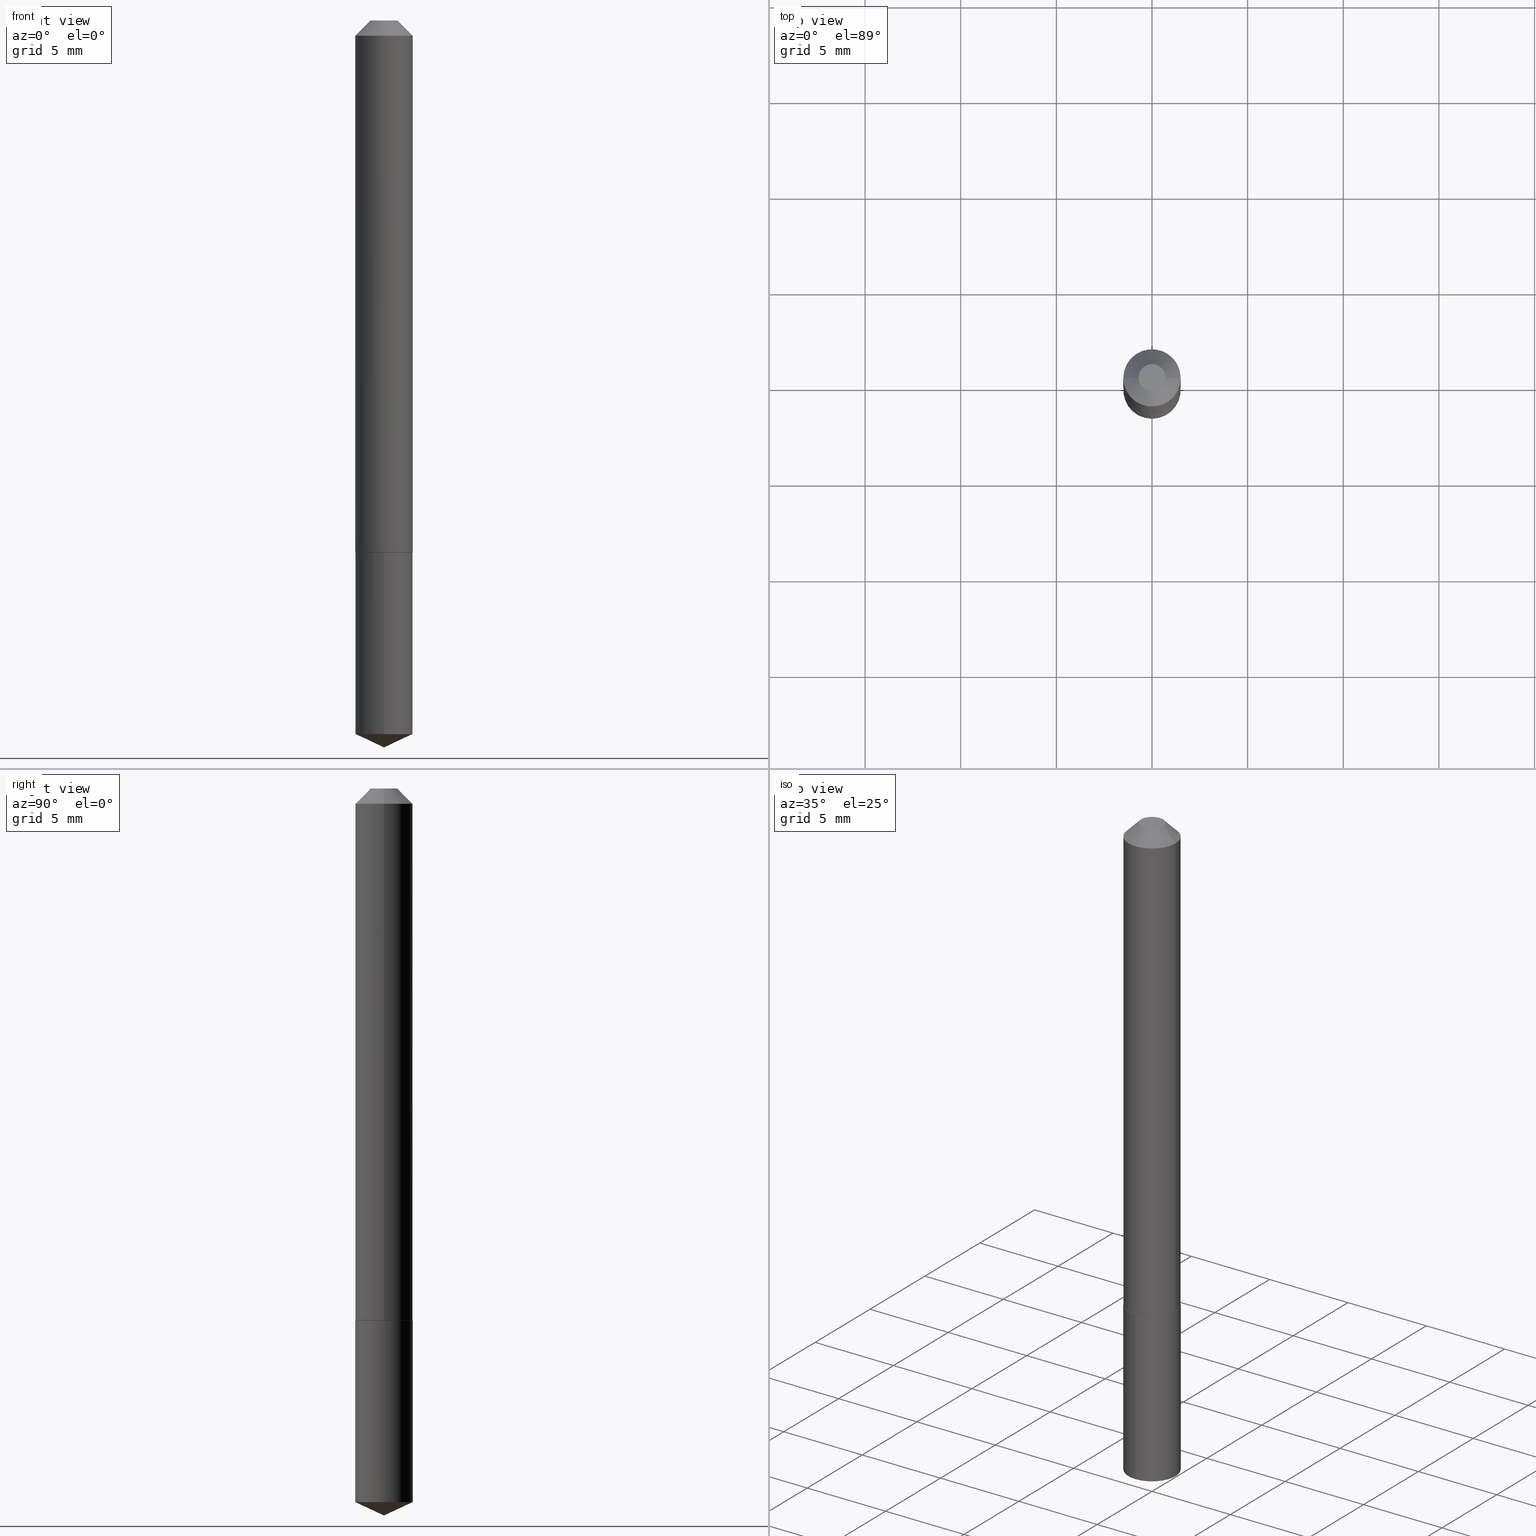
[diagram: canonical four-view strip — front | top / right | iso, engineering-drawing reading convention]
A machine part, canonical four-view strip (front | top / right | iso — engineering-drawing reading convention). The complete STEP part file that produces these views, byte-faithful:
ISO-10303-21;
HEADER;
FILE_DESCRIPTION (( 'STEP AP203' ),
    '1' );
FILE_NAME ('7720.STEP',
    '2024-04-23T14:59:42',
    ( '' ),
    ( '' ),
    'SwSTEP 2.0',
    'SolidWorks 2023',
    '' );
FILE_SCHEMA (( 'CONFIG_CONTROL_DESIGN' ));
ENDSEC;

DATA;
#1 = FACE_OUTER_BOUND ( 'NONE', #214, .T. ) ;
#2 = ORIENTED_EDGE ( 'NONE', *, *, #130, .F. ) ;
#3 = MANIFOLD_SOLID_BREP ( 'Body-Move/Copy2[2]', #46 ) ;
#4 = FACE_OUTER_BOUND ( 'NONE', #236, .T. ) ;
#5 = CIRCLE ( 'NONE', #198, 0.05855000000000011584 ) ;
#6 = CARTESIAN_POINT ( 'NONE',  ( -0.05905000000000013710, -3.400105099228060593E-15, -1.093999999999999861 ) ) ;
#7 = DIRECTION ( 'NONE',  ( -0.7071067811865452413, 2.468850131082233000E-15, -0.7071067811865497932 ) ) ;
#8 = EDGE_CURVE ( 'NONE', #309, #282, #293, .T. ) ;
#9 = DIRECTION ( 'NONE',  ( 1.000000000000000000, -6.982962677686264344E-15, 0.000000000000000000 ) ) ;
#10 = CARTESIAN_POINT ( 'NONE',  ( -0.05905000000000013710, -3.400105099228060593E-15, -1.093999999999999861 ) ) ;
#11 = EDGE_CURVE ( 'NONE', #165, #111, #387, .T. ) ;
#12 = CARTESIAN_POINT ( 'NONE',  ( 0.000000000000000000, 0.000000000000000000, 0.000000000000000000 ) ) ;
#13 = DIRECTION ( 'NONE',  ( 2.445468806185136597E-29, -3.491481338843145583E-15, -1.000000000000000000 ) ) ;
#14 = PERSON_AND_ORGANIZATION ( #162, #129 ) ;
#15 = EDGE_CURVE ( 'NONE', #282, #309, #233, .T. ) ;
#16 = CONICAL_SURFACE ( 'NONE', #343, 0.05905000000000000526, 0.7853981633974450594 ) ;
#17 = CARTESIAN_POINT ( 'NONE',  ( 5.166091316693591663E-48, -7.375809244172283946E-34, -2.112515728529185479E-19 ) ) ;
#18 = APPROVAL_DATE_TIME ( #40, #323 ) ;
#19 = CARTESIAN_POINT ( 'NONE',  ( 3.591186047163604119E-29, -5.127670026563741569E-15, -1.468564532785947563 ) ) ;
#20 = EDGE_LOOP ( 'NONE', ( #43, #252, #374, #2 ) ) ;
#21 = CARTESIAN_POINT ( 'NONE',  ( 0.05905000000000013710, -4.232024530811775401E-15, -1.093999999999999861 ) ) ;
#22 = CARTESIAN_POINT ( 'NONE',  ( 4.195754854663658212E-16, 0.05904999999999617499, -1.094500000000000250 ) ) ;
#23 = ORIENTED_EDGE ( 'NONE', *, *, #89, .F. ) ;
#24 = CALENDAR_DATE ( 2024, 23, 4 ) ;
#25 = DIRECTION ( 'NONE',  ( 2.445087300798306886E-29, -3.492027676271023430E-15, -1.000000000000000000 ) ) ;
#26 = CONICAL_SURFACE ( 'NONE', #276, 84.42940631927480410, 1.134464013796318005 ) ;
#27 = ORIENTED_EDGE ( 'NONE', *, *, #157, .T. ) ;
#28 = LINE ( 'NONE', #289, #211 ) ;
#29 = ORIENTED_EDGE ( 'NONE', *, *, #348, .T. ) ;
#30 = PERSON_AND_ORGANIZATION_ROLE ( 'classification_officer' ) ;
#31 = FACE_OUTER_BOUND ( 'NONE', #249, .T. ) ;
#32 = ORIENTED_EDGE ( 'NONE', *, *, #8, .T. ) ;
#33 = CARTESIAN_POINT ( 'NONE',  ( -9.260476689061824272E-28, 1.322575799374450875E-13, 37.87397874015748300 ) ) ;
#34 = APPROVAL_PERSON_ORGANIZATION ( #117, #385, #270 ) ;
#35 = EDGE_CURVE ( 'NONE', #232, #384, #136, .T. ) ;
#36 = DIRECTION ( 'NONE',  ( -2.445087300798307446E-29, 3.492027676271023430E-15, 1.000000000000000000 ) ) ;
#37 = FACE_OUTER_BOUND ( 'NONE', #229, .T. ) ;
#38 = DIRECTION ( 'NONE',  ( -0.7071067811864388819, 7.493145998869961307E-15, 0.7071067811866561525 ) ) ;
#39 = APPROVAL ( #346, 'UNSPECIFIED' ) ;
#40 = DATE_AND_TIME ( #308, #212 ) ;
#41 = COORDINATED_UNIVERSAL_TIME_OFFSET ( 5, 0, .BEHIND. ) ;
#42 = APPROVAL_PERSON_ORGANIZATION ( #250, #323, #71 ) ;
#43 = ORIENTED_EDGE ( 'NONE', *, *, #54, .T. ) ;
#44 = LINE ( 'NONE', #110, #94 ) ;
#45 = ADVANCED_FACE ( 'NONE', ( #170 ), #386, .F. ) ;
#46 = CLOSED_SHELL ( 'NONE', ( #382, #79, #277, #45, #256, #390, #216, #63 ) ) ;
#47 = DIRECTION ( 'NONE',  ( -2.445468806185136597E-29, 3.491481338843145583E-15, 1.000000000000000000 ) ) ;
#48 = VERTEX_POINT ( 'NONE', #354 ) ;
#49 = APPROVAL_DATE_TIME ( #139, #39 ) ;
#50 = LINE ( 'NONE', #320, #145 ) ;
#51 = VERTEX_POINT ( 'NONE', #286 ) ;
#52 = PERSON_AND_ORGANIZATION ( #162, #129 ) ;
#53 = DIRECTION ( 'NONE',  ( 1.000000000000000000, -6.982962677686265922E-15, 0.000000000000000000 ) ) ;
#54 = EDGE_CURVE ( 'NONE', #384, #232, #102, .T. ) ;
#55 = DIRECTION ( 'NONE',  ( 1.000000000000000000, -6.982962677686264344E-15, 0.000000000000000000 ) ) ;
#56 = AXIS2_PLACEMENT_3D ( 'NONE', #297, #220, #62 ) ;
#57 = CC_DESIGN_SECURITY_CLASSIFICATION ( #377, ( #264 ) ) ;
#58 = CC_DESIGN_PERSON_AND_ORGANIZATION_ASSIGNMENT ( #52, #296, ( #264 ) ) ;
#59 = DIRECTION ( 'NONE',  ( 2.445468806185136597E-29, -3.491481338843145583E-15, -1.000000000000000000 ) ) ;
#60 = ORIENTED_EDGE ( 'NONE', *, *, #35, .T. ) ;
#61 = SECURITY_CLASSIFICATION_LEVEL ( 'unclassified' ) ;
#62 = DIRECTION ( 'NONE',  ( 1.000000000000000000, -6.982962677686265922E-15, 0.000000000000000000 ) ) ;
#63 = ADVANCED_FACE ( 'NONE', ( #258 ), #178, .F. ) ;
#64 = CC_DESIGN_PERSON_AND_ORGANIZATION_ASSIGNMENT ( #241, #30, ( #377 ) ) ;
#65 = DIRECTION ( 'NONE',  ( 6.439704144417036664E-15, 0.9063077870366530453, 0.4226182617406928910 ) ) ;
#66 = VECTOR ( 'NONE', #357, 39.37007874015748143 ) ;
#67 = CYLINDRICAL_SURFACE ( 'NONE', #226, 0.05904999999999999832 ) ;
#68 = DIRECTION ( 'NONE',  ( -2.445468806185136597E-29, 3.491481338843145583E-15, 1.000000000000000000 ) ) ;
#69 = EDGE_CURVE ( 'NONE', #210, #207, #363, .T. ) ;
#70 = DIRECTION ( 'NONE',  ( -2.445468806185136597E-29, 3.491481338843145583E-15, 1.000000000000000000 ) ) ;
#71 = APPROVAL_ROLE ( '' ) ;
#72 = LENGTH_MEASURE_WITH_UNIT ( LENGTH_MEASURE( 0.02539999999999999897 ), #192 );
#73 = ADVANCED_BREP_SHAPE_REPRESENTATION ( '7720', ( #255, #3, #254 ), #160 ) ;
#74 = EDGE_LOOP ( 'NONE', ( #347, #362 ) ) ;
#75 = EDGE_CURVE ( 'NONE', #51, #85, #193, .T. ) ;
#76 = PRODUCT_DEFINITION_SHAPE ( 'NONE', 'NONE',  #200 ) ;
#77 =( NAMED_UNIT ( * ) SI_UNIT ( $, .STERADIAN. ) SOLID_ANGLE_UNIT ( ) );
#78 = AXIS2_PLACEMENT_3D ( 'NONE', #84, #383, #235 ) ;
#79 = ADVANCED_FACE ( 'NONE', ( #204 ), #93, .T. ) ;
#80 = DIRECTION ( 'NONE',  ( -2.445468806185136597E-29, 3.491481338843145583E-15, 1.000000000000000000 ) ) ;
#81 = EDGE_LOOP ( 'NONE', ( #107, #324, #358, #380 ) ) ;
#82 = DIRECTION ( 'NONE',  ( 1.000000000000000000, -6.982962677686266711E-15, 4.876176775795936353E-29 ) ) ;
#83 = VECTOR ( 'NONE', #338, 39.37007874015748143 ) ;
#84 = CARTESIAN_POINT ( 'NONE',  ( 2.675342873966538993E-29, -3.819680584694400481E-15, -1.093999999999999861 ) ) ;
#85 = VERTEX_POINT ( 'NONE', #140 ) ;
#86 = EDGE_CURVE ( 'NONE', #48, #85, #50, .T. ) ;
#87 = CARTESIAN_POINT ( 'NONE',  ( 2.676565608369631794E-29, -3.821426325363822773E-15, -1.094499999999999806 ) ) ;
#88 = ORIENTED_EDGE ( 'NONE', *, *, #299, .F. ) ;
#89 = EDGE_CURVE ( 'NONE', #207, #165, #28, .T. ) ;
#90 = CARTESIAN_POINT ( 'NONE',  ( 2.675342873966538993E-29, -3.819680584694400481E-15, -1.093999999999999861 ) ) ;
#91 = CC_DESIGN_PERSON_AND_ORGANIZATION_ASSIGNMENT ( #225, #325, ( #264 ) ) ;
#92 = ORIENTED_EDGE ( 'NONE', *, *, #54, .F. ) ;
#93 = CYLINDRICAL_SURFACE ( 'NONE', #284, 0.05905000000000006771 ) ;
#94 = VECTOR ( 'NONE', #275, 39.37007874015748143 ) ;
#95 = EDGE_CURVE ( 'NONE', #51, #309, #237, .T. ) ;
#96 = CONICAL_SURFACE ( 'NONE', #369, 84.42940631927480410, 1.134464013796318005 ) ;
#97 = ORIENTED_EDGE ( 'NONE', *, *, #251, .F. ) ;
#98 = LINE ( 'NONE', #215, #301 ) ;
#99 = SHAPE_DEFINITION_REPRESENTATION ( #76, #73 ) ;
#100 = FACE_OUTER_BOUND ( 'NONE', #287, .T. ) ;
#101 = DIRECTION ( 'NONE',  ( -6.982962677686265922E-15, -1.000000000000000000, 4.626330217890369336E-15 ) ) ;
#102 = CIRCLE ( 'NONE', #78, 0.05905000000000013710 ) ;
#103 = DIRECTION ( 'NONE',  ( -2.445468806185136597E-29, 3.491481338843145583E-15, 1.000000000000000000 ) ) ;
#104 = CARTESIAN_POINT ( 'NONE',  ( 7.642090019328603538E-31, -1.091087918388490390E-16, -0.03125000000000021511 ) ) ;
#105 = DATE_AND_TIME ( #372, #356 ) ;
#106 = EDGE_LOOP ( 'NONE', ( #141, #314, #350 ) ) ;
#107 = ORIENTED_EDGE ( 'NONE', *, *, #95, .F. ) ;
#108 = CALENDAR_DATE ( 2024, 23, 4 ) ;
#109 = AXIS2_PLACEMENT_3D ( 'NONE', #90, #201, #55 ) ;
#110 = CARTESIAN_POINT ( 'NONE',  ( -4.123439461173472114E-16, -0.05905000000000382165, -1.094499999999999584 ) ) ;
#111 = VERTEX_POINT ( 'NONE', #257 ) ;
#112 = ORIENTED_EDGE ( 'NONE', *, *, #251, .T. ) ;
#113 = AXIS2_PLACEMENT_3D ( 'NONE', #315, #326, #166 ) ;
#114 = CIRCLE ( 'NONE', #302, 0.05855000000000011584 ) ;
#115 = DIRECTION ( 'NONE',  ( -2.445087300798307446E-29, 3.492027676271023430E-15, 1.000000000000000000 ) ) ;
#116 = DIRECTION ( 'NONE',  ( -2.445468806185136877E-29, 3.491481338843145188E-15, 1.000000000000000000 ) ) ;
#117 = PERSON_AND_ORGANIZATION ( #162, #129 ) ;
#118 = DIRECTION ( 'NONE',  ( -2.438088387897960049E-29, 3.491481338843145188E-15, 1.000000000000000000 ) ) ;
#119 = DESIGN_CONTEXT ( 'detailed design', #274, 'design' ) ;
#120 = ORIENTED_EDGE ( 'NONE', *, *, #227, .F. ) ;
#121 = ADVANCED_FACE ( 'NONE', ( #1 ), #143, .F. ) ;
#122 = CARTESIAN_POINT ( 'NONE',  ( 2.676565608369631794E-29, -3.821426325363822773E-15, -1.094499999999999806 ) ) ;
#123 = AXIS2_PLACEMENT_3D ( 'NONE', #206, #115, #283 ) ;
#124 = LINE ( 'NONE', #6, #163 ) ;
#125 = UNCERTAINTY_MEASURE_WITH_UNIT (LENGTH_MEASURE( 1.000000000000000082E-05 ), #132, 'distance_accuracy_value', 'NONE');
#126 = CARTESIAN_POINT ( 'NONE',  ( 1.033218263338718333E-47, -1.475161848834456789E-33, -4.225031457058370958E-19 ) ) ;
#127 = CARTESIAN_POINT ( 'NONE',  ( -4.123439461173472114E-16, -0.05905000000000382165, -1.094499999999999584 ) ) ;
#128 = CONICAL_SURFACE ( 'NONE', #177, 0.05905000000000013710, 0.7853981633972946241 ) ;
#129 = ORGANIZATION ( 'UNSPECIFIED', 'UNSPECIFIED', '' ) ;
#130 = EDGE_CURVE ( 'NONE', #384, #165, #379, .T. ) ;
#131 = CARTESIAN_POINT ( 'NONE',  ( 0.05905000000000000526, -5.214527379562231333E-16, -0.03125000000000021511 ) ) ;
#132 =( CONVERSION_BASED_UNIT ( 'INCH', #72 ) LENGTH_UNIT ( ) NAMED_UNIT ( #191 ) );
#133 = CC_DESIGN_DATE_AND_TIME_ASSIGNMENT ( #105, #222, ( #200 ) ) ;
#134 = PERSON_AND_ORGANIZATION ( #162, #129 ) ;
#135 = ADVANCED_FACE ( 'NONE', ( #148 ), #96, .T. ) ;
#136 = CIRCLE ( 'NONE', #109, 0.05905000000000013710 ) ;
#137 = AXIS2_PLACEMENT_3D ( 'NONE', #12, #70, #82 ) ;
#138 = DIRECTION ( 'NONE',  ( -1.000000000000000000, 6.982962677686265922E-15, -4.876176775795935793E-29 ) ) ;
#139 = DATE_AND_TIME ( #108, #199 ) ;
#140 = CARTESIAN_POINT ( 'NONE',  ( -4.123439461173381888E-16, -0.05905000000000514698, -1.468564532785947341 ) ) ;
#141 = ORIENTED_EDGE ( 'NONE', *, *, #86, .F. ) ;
#142 = COORDINATED_UNIVERSAL_TIME_OFFSET ( 5, 0, .BEHIND. ) ;
#143 = PLANE ( 'NONE',  #219 ) ;
#144 = ORIENTED_EDGE ( 'NONE', *, *, #243, .T. ) ;
#145 = VECTOR ( 'NONE', #173, 39.37007874015748854 ) ;
#146 = CC_DESIGN_APPROVAL ( #323, ( #264 ) ) ;
#147 = DIRECTION ( 'NONE',  ( 0.7071067811865452413, -7.319954787623248157E-15, -0.7071067811865497932 ) ) ;
#148 = FACE_OUTER_BOUND ( 'NONE', #327, .T. ) ;
#149 = CARTESIAN_POINT ( 'NONE',  ( 3.658937548991450661E-29, -5.223226673839453949E-15, -1.496099999999999985 ) ) ;
#150 = ORIENTED_EDGE ( 'NONE', *, *, #86, .T. ) ;
#151 = DIRECTION ( 'NONE',  ( -2.445087300798307446E-29, 3.492027676271023430E-15, 1.000000000000000000 ) ) ;
#152 = AXIS2_PLACEMENT_3D ( 'NONE', #122, #240, #364 ) ;
#153 = CC_DESIGN_PERSON_AND_ORGANIZATION_ASSIGNMENT ( #14, #247, ( #200 ) ) ;
#154 = DIRECTION ( 'NONE',  ( -6.982962677686265922E-15, -1.000000000000000000, 4.626330217890369336E-15 ) ) ;
#155 = EDGE_CURVE ( 'NONE', #85, #282, #44, .T. ) ;
#156 = CARTESIAN_POINT ( 'NONE',  ( 2.675342873966538993E-29, -3.819680584694400481E-15, -1.093999999999999861 ) ) ;
#157 = EDGE_CURVE ( 'NONE', #210, #111, #366, .T. ) ;
#158 = CARTESIAN_POINT ( 'NONE',  ( 2.676565608369632355E-29, -3.821426325363822773E-15, -1.094500000000000028 ) ) ;
#159 = AXIS2_PLACEMENT_3D ( 'NONE', #209, #47, #295 ) ;
#160 =( GEOMETRIC_REPRESENTATION_CONTEXT ( 3 ) GLOBAL_UNCERTAINTY_ASSIGNED_CONTEXT ( ( #125 ) ) GLOBAL_UNIT_ASSIGNED_CONTEXT ( ( #132, #342, #77 ) ) REPRESENTATION_CONTEXT ( 'NONE', 'WORKASPACE' ) );
#161 = FACE_OUTER_BOUND ( 'NONE', #262, .T. ) ;
#162 = PERSON ( 'UNSPECIFIED', 'UNSPECIFIED', 'UNSPECIFIED', ('UNSPECIFIED'), ('UNSPECIFIED'), ('UNSPECIFIED') ) ;
#163 = VECTOR ( 'NONE', #38, 39.37007874015748143 ) ;
#164 = LOCAL_TIME ( 10, 59, 42.00000000000000000, #290 ) ;
#165 = VERTEX_POINT ( 'NONE', #131 ) ;
#166 = DIRECTION ( 'NONE',  ( -6.982962677686265922E-15, -1.000000000000000000, 4.626330217890369336E-15 ) ) ;
#167 = ORIENTED_EDGE ( 'NONE', *, *, #95, .T. ) ;
#168 = VECTOR ( 'NONE', #65, 39.37007874015748143 ) ;
#169 = DIRECTION ( 'NONE',  ( 1.000000000000000000, 0.000000000000000000, 0.000000000000000000 ) ) ;
#170 = FACE_OUTER_BOUND ( 'NONE', #313, .T. ) ;
#171 = ORIENTED_EDGE ( 'NONE', *, *, #368, .T. ) ;
#172 = MECHANICAL_CONTEXT ( 'NONE', #331, 'mechanical' ) ;
#173 = DIRECTION ( 'NONE',  ( -6.328713451373380423E-15, -0.9063077870366499367, 0.4226182617406991082 ) ) ;
#174 = CC_DESIGN_DATE_AND_TIME_ASSIGNMENT ( #234, #294, ( #377 ) ) ;
#175 = DIRECTION ( 'NONE',  ( 1.000000000000000000, -6.982962677686265922E-15, 4.876176775795935793E-29 ) ) ;
#176 = CALENDAR_DATE ( 2024, 23, 4 ) ;
#177 = AXIS2_PLACEMENT_3D ( 'NONE', #268, #367, #370 ) ;
#178 = PLANE ( 'NONE',  #376 ) ;
#179 = ORIENTED_EDGE ( 'NONE', *, *, #69, .F. ) ;
#180 = DIRECTION ( 'NONE',  ( 1.000000000000000000, -6.982962677686266711E-15, 0.000000000000000000 ) ) ;
#181 = ORIENTED_EDGE ( 'NONE', *, *, #157, .F. ) ;
#182 = APPROVAL_DATE_TIME ( #184, #385 ) ;
#183 = FACE_OUTER_BOUND ( 'NONE', #106, .T. ) ;
#184 = DATE_AND_TIME ( #24, #164 ) ;
#185 = ADVANCED_FACE ( 'NONE', ( #303 ), #67, .T. ) ;
#186 = CARTESIAN_POINT ( 'NONE',  ( 3.591186047163604119E-29, -5.127670026563741569E-15, -1.468564532785947563 ) ) ;
#187 = AXIS2_PLACEMENT_3D ( 'NONE', #19, #228, #351 ) ;
#188 = PRODUCT ( '7720', '7720', '', ( #172 ) ) ;
#189 = CARTESIAN_POINT ( 'NONE',  ( 2.676565608369632355E-29, -3.821426325363822773E-15, -1.094500000000000028 ) ) ;
#190 = CARTESIAN_POINT ( 'NONE',  ( 4.195754854663749917E-16, 0.05904999999999616805, -1.094500000000000250 ) ) ;
#191 = DIMENSIONAL_EXPONENTS ( 1.000000000000000000, 0.000000000000000000, 0.000000000000000000, 0.000000000000000000, 0.000000000000000000, 0.000000000000000000, 0.000000000000000000 ) ;
#192 =( LENGTH_UNIT ( ) NAMED_UNIT ( * ) SI_UNIT ( $, .METRE. ) );
#193 = CIRCLE ( 'NONE', #187, 0.05904999999999999832 ) ;
#194 = PERSON_AND_ORGANIZATION_ROLE ( 'design_owner' ) ;
#195 = PRODUCT_RELATED_PRODUCT_CATEGORY ( 'detail', '', ( #188 ) ) ;
#196 = ORIENTED_EDGE ( 'NONE', *, *, #291, .F. ) ;
#197 = VERTEX_POINT ( 'NONE', #272 ) ;
#198 = AXIS2_PLACEMENT_3D ( 'NONE', #189, #103, #180 ) ;
#199 = LOCAL_TIME ( 10, 59, 42.00000000000000000, #142 ) ;
#200 = PRODUCT_DEFINITION ( 'UNKNOWN', '', #264, #119 ) ;
#201 = DIRECTION ( 'NONE',  ( -2.445468806185136597E-29, 3.491481338843145583E-15, 1.000000000000000000 ) ) ;
#202 = ORIENTED_EDGE ( 'NONE', *, *, #243, .F. ) ;
#203 = EDGE_CURVE ( 'NONE', #85, #51, #349, .T. ) ;
#204 = FACE_OUTER_BOUND ( 'NONE', #20, .T. ) ;
#205 = ORIENTED_EDGE ( 'NONE', *, *, #75, .F. ) ;
#206 = CARTESIAN_POINT ( 'NONE',  ( 2.676565608369631794E-29, -3.821426325363822773E-15, -1.094499999999999806 ) ) ;
#207 = VERTEX_POINT ( 'NONE', #336 ) ;
#208 = EDGE_CURVE ( 'NONE', #48, #51, #271, .T. ) ;
#209 = CARTESIAN_POINT ( 'NONE',  ( 1.033218263338718333E-47, -1.475161848834456789E-33, -4.225031457058370958E-19 ) ) ;
#210 = VERTEX_POINT ( 'NONE', #333 ) ;
#211 = VECTOR ( 'NONE', #147, 39.37007874015748143 ) ;
#212 = LOCAL_TIME ( 10, 59, 42.00000000000000000, #41 ) ;
#213 = DIRECTION ( 'NONE',  ( -6.982962677686267499E-15, -1.000000000000000000, 3.520397390770434543E-15 ) ) ;
#214 = EDGE_LOOP ( 'NONE', ( #317, #32 ) ) ;
#215 = CARTESIAN_POINT ( 'NONE',  ( -0.05905000000000006771, 4.195754854663396409E-16, -2.904631170795525045E-30 ) ) ;
#216 = ADVANCED_FACE ( 'NONE', ( #100 ), #306, .T. ) ;
#217 = CYLINDRICAL_SURFACE ( 'NONE', #152, 0.05904999999999999832 ) ;
#218 = DIRECTION ( 'NONE',  ( -2.445468806185136597E-29, 3.491481338843145583E-15, 1.000000000000000000 ) ) ;
#219 = AXIS2_PLACEMENT_3D ( 'NONE', #87, #25, #265 ) ;
#220 = DIRECTION ( 'NONE',  ( -2.445468806185136597E-29, 3.491481338843145583E-15, 1.000000000000000000 ) ) ;
#221 = CARTESIAN_POINT ( 'NONE',  ( 7.642090019328603538E-31, -1.091087918388490390E-16, -0.03125000000000021511 ) ) ;
#222 = DATE_TIME_ROLE ( 'creation_date' ) ;
#223 = CIRCLE ( 'NONE', #56, 0.05905000000000000526 ) ;
#224 = CARTESIAN_POINT ( 'NONE',  ( 0.000000000000000000, 0.000000000000000000, 0.000000000000000000 ) ) ;
#225 = PERSON_AND_ORGANIZATION ( #162, #129 ) ;
#226 = AXIS2_PLACEMENT_3D ( 'NONE', #242, #246, #101 ) ;
#227 = EDGE_CURVE ( 'NONE', #207, #210, #334, .T. ) ;
#228 = DIRECTION ( 'NONE',  ( -2.445087300798307446E-29, 3.492027676271023430E-15, 1.000000000000000000 ) ) ;
#229 = EDGE_LOOP ( 'NONE', ( #171, #29, #92, #196 ) ) ;
#230 = APPLICATION_PROTOCOL_DEFINITION ( 'international standard', 'config_control_design', 1994, #331 ) ;
#231 = CARTESIAN_POINT ( 'NONE',  ( 8.935500934454829599E-30, -6.374806025675973992E-15, -1.094500000000000028 ) ) ;
#232 = VERTEX_POINT ( 'NONE', #10 ) ;
#233 = CIRCLE ( 'NONE', #123, 0.05904999999999999832 ) ;
#234 = DATE_AND_TIME ( #176, #335 ) ;
#235 = DIRECTION ( 'NONE',  ( 1.000000000000000000, -6.982962677686264344E-15, 0.000000000000000000 ) ) ;
#236 = EDGE_LOOP ( 'NONE', ( #378, #167, #345, #355 ) ) ;
#237 = LINE ( 'NONE', #22, #66 ) ;
#238 = CARTESIAN_POINT ( 'NONE',  ( -9.260476689061824272E-28, 1.322575799374450875E-13, 37.87397874015748300 ) ) ;
#239 = ORIENTED_EDGE ( 'NONE', *, *, #89, .T. ) ;
#240 = DIRECTION ( 'NONE',  ( -2.445087300798307446E-29, 3.492027676271023430E-15, 1.000000000000000000 ) ) ;
#241 = PERSON_AND_ORGANIZATION ( #162, #129 ) ;
#242 = CARTESIAN_POINT ( 'NONE',  ( 2.676565608369631794E-29, -3.821426325363822773E-15, -1.094499999999999806 ) ) ;
#243 = EDGE_CURVE ( 'NONE', #197, #259, #5, .T. ) ;
#244 = DIRECTION ( 'NONE',  ( 1.000000000000000000, -6.982962677686266711E-15, 4.876227310796756046E-29 ) ) ;
#245 = CARTESIAN_POINT ( 'NONE',  ( 0.05905000000000013710, -4.232024530811775401E-15, -1.093999999999999861 ) ) ;
#246 = DIRECTION ( 'NONE',  ( -2.445087300798307446E-29, 3.492027676271023430E-15, 1.000000000000000000 ) ) ;
#247 = PERSON_AND_ORGANIZATION_ROLE ( 'creator' ) ;
#248 = AXIS2_PLACEMENT_3D ( 'NONE', #156, #68, #9 ) ;
#249 = EDGE_LOOP ( 'NONE', ( #267, #144, #298, #312 ) ) ;
#250 = PERSON_AND_ORGANIZATION ( #162, #129 ) ;
#251 = EDGE_CURVE ( 'NONE', #111, #165, #223, .T. ) ;
#252 = ORIENTED_EDGE ( 'NONE', *, *, #299, .T. ) ;
#253 = VECTOR ( 'NONE', #7, 39.37007874015748143 ) ;
#254 = AXIS2_PLACEMENT_3D ( 'NONE', #224, #310, #169 ) ;
#255 = MANIFOLD_SOLID_BREP ( 'Body-Move/Copy2[1]', #340 ) ;
#256 = ADVANCED_FACE ( 'NONE', ( #31 ), #128, .T. ) ;
#257 = CARTESIAN_POINT ( 'NONE',  ( -0.05905000000000000526, -1.544819202800284509E-15, -0.03125000000000021511 ) ) ;
#258 = FACE_OUTER_BOUND ( 'NONE', #74, .T. ) ;
#259 = VERTEX_POINT ( 'NONE', #304 ) ;
#260 = COORDINATED_UNIVERSAL_TIME_OFFSET ( 5, 0, .BEHIND. ) ;
#261 = DIRECTION ( 'NONE',  ( 2.438088387897960049E-29, -3.491481338843145188E-15, -1.000000000000000000 ) ) ;
#262 = EDGE_LOOP ( 'NONE', ( #88, #60, #352, #97 ) ) ;
#263 = AXIS2_PLACEMENT_3D ( 'NONE', #126, #218, #244 ) ;
#264 = PRODUCT_DEFINITION_FORMATION_WITH_SPECIFIED_SOURCE ( 'ANY', '', #188, .NOT_KNOWN. ) ;
#265 = DIRECTION ( 'NONE',  ( 6.982962677686265922E-15, 1.000000000000000000, -3.492027676271023430E-15 ) ) ;
#266 = CARTESIAN_POINT ( 'NONE',  ( 7.642090019328603538E-31, -1.091087918388490390E-16, -0.03125000000000021511 ) ) ;
#267 = ORIENTED_EDGE ( 'NONE', *, *, #348, .F. ) ;
#268 = CARTESIAN_POINT ( 'NONE',  ( 2.675342873966538993E-29, -3.819680584694400481E-15, -1.093999999999999861 ) ) ;
#269 = LINE ( 'NONE', #245, #83 ) ;
#270 = APPROVAL_ROLE ( '' ) ;
#271 = LINE ( 'NONE', #149, #168 ) ;
#272 = CARTESIAN_POINT ( 'NONE',  ( -0.05855000000000011584, -3.402754326402172189E-15, -1.094500000000000028 ) ) ;
#273 = ADVANCED_FACE ( 'NONE', ( #4 ), #217, .T. ) ;
#274 = APPLICATION_CONTEXT ( 'configuration controlled 3d designs of mechanical parts and assemblies' ) ;
#275 = DIRECTION ( 'NONE',  ( -2.445087300798307446E-29, 3.492027676271023430E-15, 1.000000000000000000 ) ) ;
#276 = AXIS2_PLACEMENT_3D ( 'NONE', #33, #151, #305 ) ;
#277 = ADVANCED_FACE ( 'NONE', ( #37 ), #316, .T. ) ;
#278 = APPROVAL_ROLE ( '' ) ;
#279 = VECTOR ( 'NONE', #116, 39.37007874015748143 ) ;
#280 = ORIENTED_EDGE ( 'NONE', *, *, #11, .T. ) ;
#281 = CC_DESIGN_APPROVAL ( #39, ( #200 ) ) ;
#282 = VERTEX_POINT ( 'NONE', #127 ) ;
#283 = DIRECTION ( 'NONE',  ( -6.982962677686265922E-15, -1.000000000000000000, 4.626330217890369336E-15 ) ) ;
#284 = AXIS2_PLACEMENT_3D ( 'NONE', #322, #80, #292 ) ;
#285 = APPROVAL_STATUS ( 'not_yet_approved' ) ;
#286 = CARTESIAN_POINT ( 'NONE',  ( 4.195754854663751396E-16, 0.05904999999999488436, -1.468564532785947785 ) ) ;
#287 = EDGE_LOOP ( 'NONE', ( #23, #179, #27, #112 ) ) ;
#288 = DIRECTION ( 'NONE',  ( -2.445468806185136597E-29, 3.491481338843145583E-15, 1.000000000000000000 ) ) ;
#289 = CARTESIAN_POINT ( 'NONE',  ( 0.05905000000000000526, -5.142211986072579689E-16, -0.03125000000000021511 ) ) ;
#290 = COORDINATED_UNIVERSAL_TIME_OFFSET ( 5, 0, .BEHIND. ) ;
#291 = EDGE_CURVE ( 'NONE', #259, #384, #269, .T. ) ;
#292 = DIRECTION ( 'NONE',  ( 1.000000000000000000, -6.982962677686266711E-15, 4.876176775795936353E-29 ) ) ;
#293 = CIRCLE ( 'NONE', #113, 0.05904999999999999832 ) ;
#294 = DATE_TIME_ROLE ( 'classification_date' ) ;
#295 = DIRECTION ( 'NONE',  ( 1.000000000000000000, -6.982962677686266711E-15, 4.876227310796756046E-29 ) ) ;
#296 = PERSON_AND_ORGANIZATION_ROLE ( 'design_supplier' ) ;
#297 = CARTESIAN_POINT ( 'NONE',  ( 7.642090019328603538E-31, -1.091087918388490390E-16, -0.03125000000000021511 ) ) ;
#298 = ORIENTED_EDGE ( 'NONE', *, *, #291, .T. ) ;
#299 = EDGE_CURVE ( 'NONE', #232, #111, #98, .T. ) ;
#300 = APPROVAL_STATUS ( 'not_yet_approved' ) ;
#301 = VECTOR ( 'NONE', #332, 39.37007874015748143 ) ;
#302 = AXIS2_PLACEMENT_3D ( 'NONE', #158, #288, #381 ) ;
#303 = FACE_OUTER_BOUND ( 'NONE', #81, .T. ) ;
#304 = CARTESIAN_POINT ( 'NONE',  ( 0.05855000000000011584, -4.230278790142354686E-15, -1.094500000000000028 ) ) ;
#305 = DIRECTION ( 'NONE',  ( -6.982962677686267499E-15, -1.000000000000000000, 3.520397390770434543E-15 ) ) ;
#306 = CONICAL_SURFACE ( 'NONE', #373, 0.05905000000000000526, 0.7853981633974450594 ) ;
#307 = APPROVAL_PERSON_ORGANIZATION ( #318, #39, #278 ) ;
#308 = CALENDAR_DATE ( 2024, 23, 4 ) ;
#309 = VERTEX_POINT ( 'NONE', #190 ) ;
#310 = DIRECTION ( 'NONE',  ( 0.000000000000000000, 0.000000000000000000, 1.000000000000000000 ) ) ;
#311 = AXIS2_PLACEMENT_3D ( 'NONE', #266, #359, #53 ) ;
#312 = ORIENTED_EDGE ( 'NONE', *, *, #35, .F. ) ;
#313 = EDGE_LOOP ( 'NONE', ( #360, #202 ) ) ;
#314 = ORIENTED_EDGE ( 'NONE', *, *, #208, .T. ) ;
#315 = CARTESIAN_POINT ( 'NONE',  ( 2.676565608369631794E-29, -3.821426325363822773E-15, -1.094499999999999806 ) ) ;
#316 = CONICAL_SURFACE ( 'NONE', #248, 0.05905000000000013710, 0.7853981633972946241 ) ;
#317 = ORIENTED_EDGE ( 'NONE', *, *, #15, .T. ) ;
#318 = PERSON_AND_ORGANIZATION ( #162, #129 ) ;
#319 = ADVANCED_FACE ( 'NONE', ( #183 ), #26, .T. ) ;
#320 = CARTESIAN_POINT ( 'NONE',  ( 3.658095110724347355E-29, -5.224422606469077643E-15, -1.496099999999999985 ) ) ;
#321 = ORIENTED_EDGE ( 'NONE', *, *, #208, .F. ) ;
#322 = CARTESIAN_POINT ( 'NONE',  ( 0.000000000000000000, 0.000000000000000000, 0.000000000000000000 ) ) ;
#323 = APPROVAL ( #285, 'UNSPECIFIED' ) ;
#324 = ORIENTED_EDGE ( 'NONE', *, *, #75, .T. ) ;
#325 = PERSON_AND_ORGANIZATION_ROLE ( 'creator' ) ;
#326 = DIRECTION ( 'NONE',  ( -2.445087300798307446E-29, 3.492027676271023430E-15, 1.000000000000000000 ) ) ;
#327 = EDGE_LOOP ( 'NONE', ( #321, #150, #205 ) ) ;
#328 = AXIS2_PLACEMENT_3D ( 'NONE', #231, #118, #175 ) ;
#329 = DIRECTION ( 'NONE',  ( -1.000000000000000000, 6.982962677686268288E-15, 0.000000000000000000 ) ) ;
#330 = EDGE_LOOP ( 'NONE', ( #120, #239, #280, #181 ) ) ;
#331 = APPLICATION_CONTEXT ( 'configuration controlled 3d designs of mechanical parts and assemblies' ) ;
#332 = DIRECTION ( 'NONE',  ( -2.445468806185136877E-29, 3.491481338843145188E-15, 1.000000000000000000 ) ) ;
#333 = CARTESIAN_POINT ( 'NONE',  ( -0.02779999999999999832, 2.486807583591016636E-16, -4.225031457073852064E-19 ) ) ;
#334 = CIRCLE ( 'NONE', #263, 0.02779999999999999832 ) ;
#335 = LOCAL_TIME ( 10, 59, 42.00000000000000000, #365 ) ;
#336 = CARTESIAN_POINT ( 'NONE',  ( 0.02779999999999999832, -3.524715214726532379E-16, -4.225031457039266214E-19 ) ) ;
#337 = CC_DESIGN_PERSON_AND_ORGANIZATION_ASSIGNMENT ( #134, #194, ( #188 ) ) ;
#338 = DIRECTION ( 'NONE',  ( 0.7071067811864388819, -2.468850131081119129E-15, 0.7071067811866561525 ) ) ;
#339 = CYLINDRICAL_SURFACE ( 'NONE', #137, 0.05905000000000006771 ) ;
#340 = CLOSED_SHELL ( 'NONE', ( #273, #319, #135, #185, #121 ) ) ;
#341 = AXIS2_PLACEMENT_3D ( 'NONE', #186, #36, #154 ) ;
#342 =( NAMED_UNIT ( * ) PLANE_ANGLE_UNIT ( ) SI_UNIT ( $, .RADIAN. ) );
#343 = AXIS2_PLACEMENT_3D ( 'NONE', #221, #13, #344 ) ;
#344 = DIRECTION ( 'NONE',  ( -1.000000000000000000, 6.982962677686268288E-15, 0.000000000000000000 ) ) ;
#345 = ORIENTED_EDGE ( 'NONE', *, *, #15, .F. ) ;
#346 = APPROVAL_STATUS ( 'not_yet_approved' ) ;
#347 = ORIENTED_EDGE ( 'NONE', *, *, #69, .T. ) ;
#348 = EDGE_CURVE ( 'NONE', #197, #232, #124, .T. ) ;
#349 = CIRCLE ( 'NONE', #341, 0.05904999999999999832 ) ;
#350 = ORIENTED_EDGE ( 'NONE', *, *, #203, .F. ) ;
#351 = DIRECTION ( 'NONE',  ( -6.982962677686265922E-15, -1.000000000000000000, 4.626330217890369336E-15 ) ) ;
#352 = ORIENTED_EDGE ( 'NONE', *, *, #130, .T. ) ;
#353 = FACE_OUTER_BOUND ( 'NONE', #330, .T. ) ;
#354 = CARTESIAN_POINT ( 'NONE',  ( 3.658095110724347355E-29, -5.224422606469077643E-15, -1.496099999999999985 ) ) ;
#355 = ORIENTED_EDGE ( 'NONE', *, *, #155, .F. ) ;
#356 = LOCAL_TIME ( 10, 59, 42.00000000000000000, #260 ) ;
#357 = DIRECTION ( 'NONE',  ( -2.445087300798307446E-29, 3.492027676271023430E-15, 1.000000000000000000 ) ) ;
#358 = ORIENTED_EDGE ( 'NONE', *, *, #155, .T. ) ;
#359 = DIRECTION ( 'NONE',  ( -2.445468806185136597E-29, 3.491481338843145583E-15, 1.000000000000000000 ) ) ;
#360 = ORIENTED_EDGE ( 'NONE', *, *, #368, .F. ) ;
#361 = DIRECTION ( 'NONE',  ( -2.445087300798307446E-29, 3.492027676271023430E-15, 1.000000000000000000 ) ) ;
#362 = ORIENTED_EDGE ( 'NONE', *, *, #227, .T. ) ;
#363 = CIRCLE ( 'NONE', #159, 0.02779999999999999832 ) ;
#364 = DIRECTION ( 'NONE',  ( -6.982962677686265922E-15, -1.000000000000000000, 4.626330217890369336E-15 ) ) ;
#365 = COORDINATED_UNIVERSAL_TIME_OFFSET ( 5, 0, .BEHIND. ) ;
#366 = LINE ( 'NONE', #371, #253 ) ;
#367 = DIRECTION ( 'NONE',  ( -2.445468806185136597E-29, 3.491481338843145583E-15, 1.000000000000000000 ) ) ;
#368 = EDGE_CURVE ( 'NONE', #259, #197, #114, .T. ) ;
#369 = AXIS2_PLACEMENT_3D ( 'NONE', #238, #361, #213 ) ;
#370 = DIRECTION ( 'NONE',  ( 1.000000000000000000, -6.982962677686264344E-15, 0.000000000000000000 ) ) ;
#371 = CARTESIAN_POINT ( 'NONE',  ( -0.05905000000000000526, 3.032351542785250800E-16, -0.03125000000000021511 ) ) ;
#372 = CALENDAR_DATE ( 2024, 23, 4 ) ;
#373 = AXIS2_PLACEMENT_3D ( 'NONE', #104, #59, #329 ) ;
#374 = ORIENTED_EDGE ( 'NONE', *, *, #11, .F. ) ;
#375 = APPLICATION_PROTOCOL_DEFINITION ( 'international standard', 'config_control_design', 1994, #274 ) ;
#376 = AXIS2_PLACEMENT_3D ( 'NONE', #17, #261, #138 ) ;
#377 = SECURITY_CLASSIFICATION ( '', '', #61 ) ;
#378 = ORIENTED_EDGE ( 'NONE', *, *, #203, .T. ) ;
#379 = LINE ( 'NONE', #389, #279 ) ;
#380 = ORIENTED_EDGE ( 'NONE', *, *, #8, .F. ) ;
#381 = DIRECTION ( 'NONE',  ( 1.000000000000000000, -6.982962677686266711E-15, 0.000000000000000000 ) ) ;
#382 = ADVANCED_FACE ( 'NONE', ( #353 ), #16, .T. ) ;
#383 = DIRECTION ( 'NONE',  ( -2.445468806185136597E-29, 3.491481338843145583E-15, 1.000000000000000000 ) ) ;
#384 = VERTEX_POINT ( 'NONE', #21 ) ;
#385 = APPROVAL ( #300, 'UNSPECIFIED' ) ;
#386 = PLANE ( 'NONE',  #328 ) ;
#387 = CIRCLE ( 'NONE', #311, 0.05905000000000000526 ) ;
#388 = CC_DESIGN_APPROVAL ( #385, ( #377 ) ) ;
#389 = CARTESIAN_POINT ( 'NONE',  ( 0.05905000000000006771, -4.123439461173745257E-16, 2.879382386107503723E-30 ) ) ;
#390 = ADVANCED_FACE ( 'NONE', ( #161 ), #339, .T. ) ;
ENDSEC;
END-ISO-10303-21;
